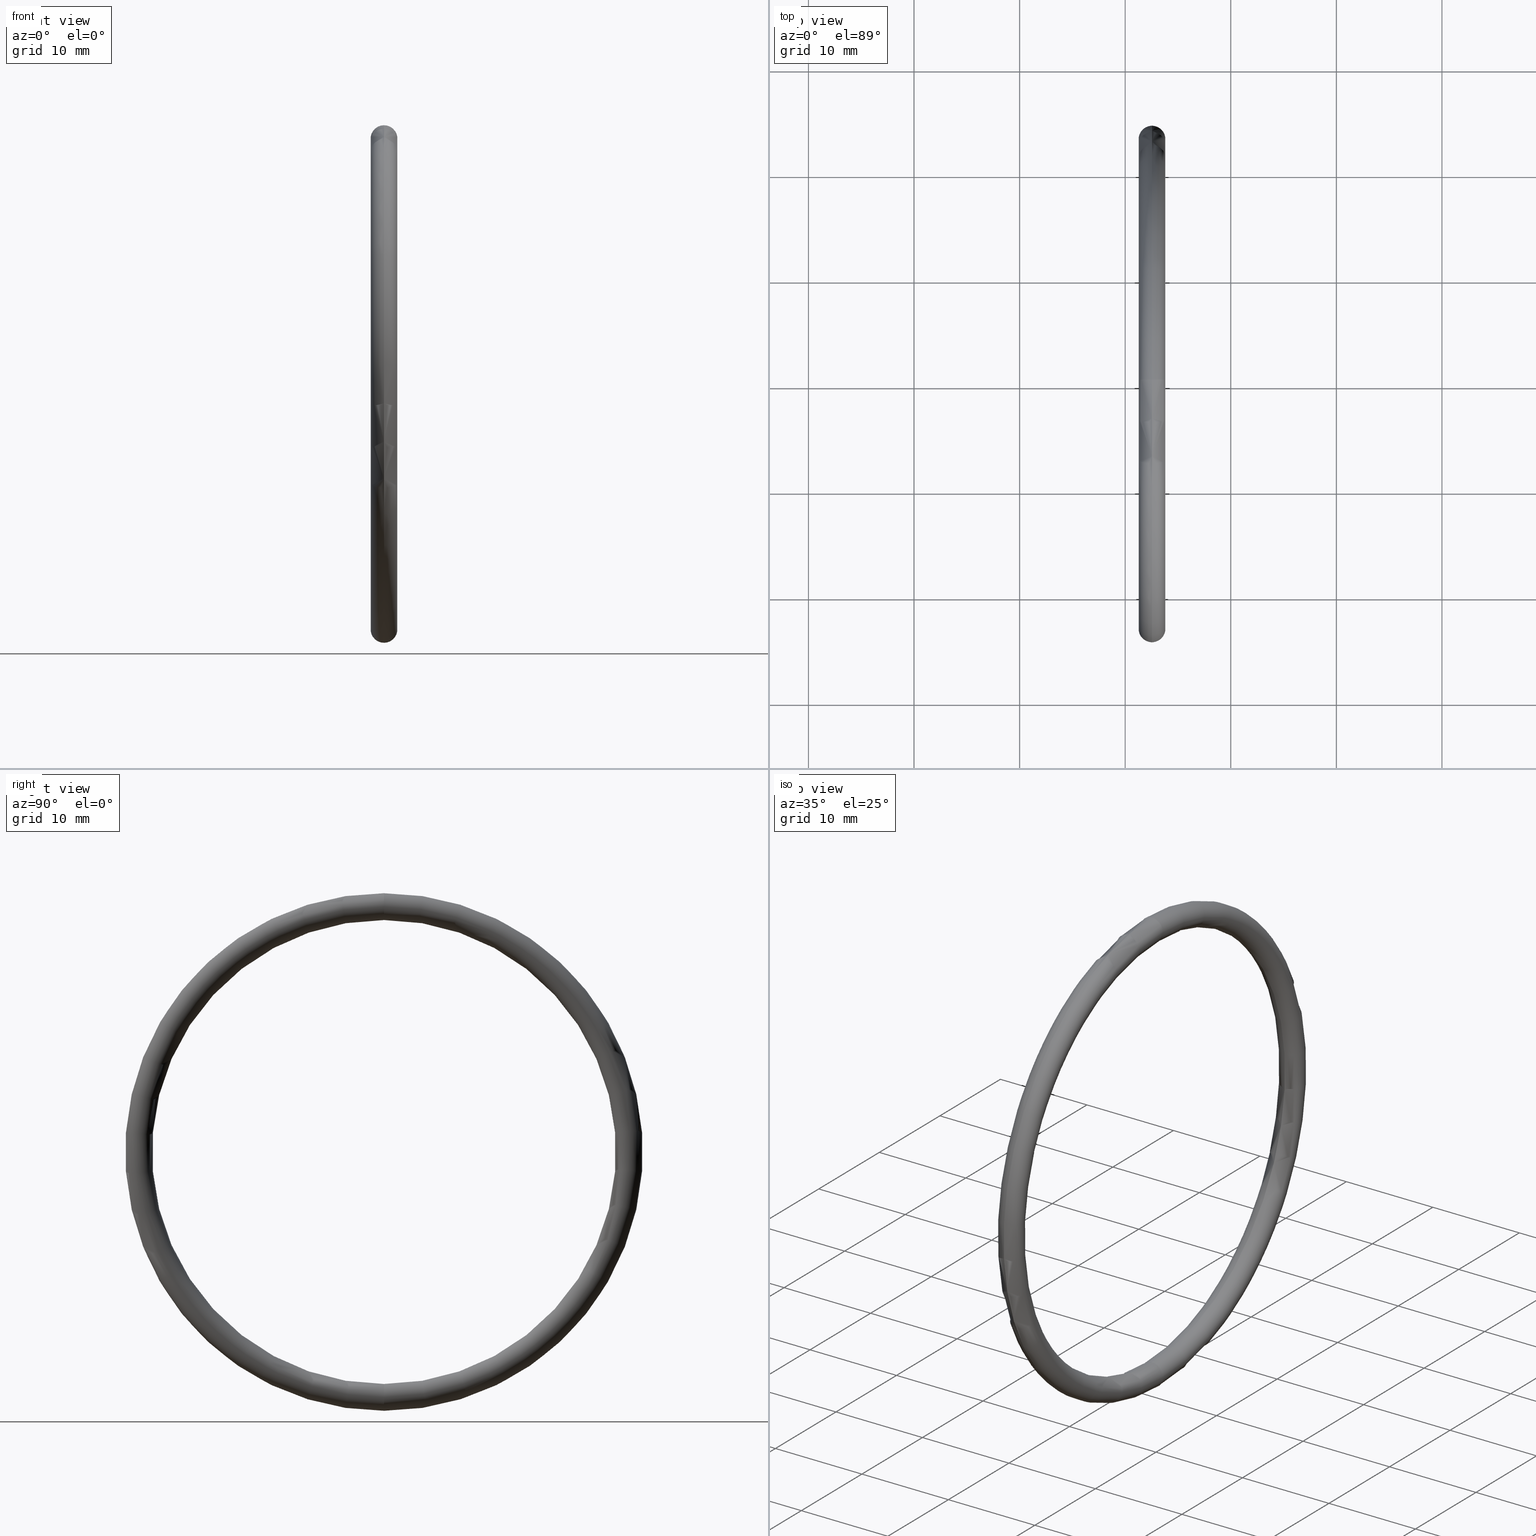
[diagram: canonical four-view strip — front | top / right | iso, engineering-drawing reading convention]
A machine part, canonical four-view strip (front | top / right | iso — engineering-drawing reading convention). The complete STEP part file that produces these views, byte-faithful:
ISO-10303-21;
HEADER;
FILE_DESCRIPTION (( 'STEP AP203' ),
    '1' );
FILE_NAME ('OR-36-VT.STEP',
    '2008-06-24T10:31:21',
    ( 'BSI05' ),
    ( 'BAYSTATE' ),
    'SwSTEP 2.0',
    'SolidWorks 2007',
    '' );
FILE_SCHEMA (( 'CONFIG_CONTROL_DESIGN' ));
ENDSEC;

DATA;
#1 = TOROIDAL_SURFACE ( 'NONE', #20, 0.9149999999999999200, 0.05000000000000000300 ) ;
#2 = DIRECTION ( 'NONE',  ( 0.0000000000000000000, 0.0000000000000000000, 1.000000000000000000 ) ) ;
#3 = DIRECTION ( 'NONE',  ( -1.000000000000000000, 0.0000000000000000000, 0.0000000000000000000 ) ) ;
#4 = EDGE_LOOP ( 'NONE', ( #86, #87, #67, #8 ) ) ;
#5 = ADVANCED_FACE ( 'NONE', ( #32 ), #84, .T. ) ;
#6 = ORIENTED_EDGE ( 'NONE', *, *, #52, .T. ) ;
#7 =( LENGTH_UNIT ( ) NAMED_UNIT ( * ) SI_UNIT ( $, .METRE. ) );
#8 = ORIENTED_EDGE ( 'NONE', *, *, #88, .T. ) ;
#9 = DIRECTION ( 'NONE',  ( 0.0000000000000000000, 0.0000000000000000000, 1.000000000000000000 ) ) ;
#10 = DIRECTION ( 'NONE',  ( -1.000000000000000000, 0.0000000000000000000, 0.0000000000000000000 ) ) ;
#11 = CARTESIAN_POINT ( 'NONE',  ( 0.1000000000000001200, 0.0000000000000000000, 0.0000000000000000000 ) ) ;
#12 = ORIENTED_EDGE ( 'NONE', *, *, #70, .T. ) ;
#13 = EDGE_CURVE ( 'NONE', #21, #91, #97, .T. ) ;
#14 = ORIENTED_EDGE ( 'NONE', *, *, #119, .F. ) ;
#15 = ADVANCED_FACE ( 'NONE', ( #98 ), #1, .T. ) ;
#16 = VERTEX_POINT ( 'NONE', #57 ) ;
#17 = FACE_OUTER_BOUND ( 'NONE', #4, .T. ) ;
#18 = DIRECTION ( 'NONE',  ( 0.0000000000000000000, 0.0000000000000000000, 1.000000000000000000 ) ) ;
#19 = DIRECTION ( 'NONE',  ( -1.000000000000000000, 0.0000000000000000000, 0.0000000000000000000 ) ) ;
#20 = AXIS2_PLACEMENT_3D ( 'NONE', #56, #55, #54 ) ;
#21 = VERTEX_POINT ( 'NONE', #46 ) ;
#22 = CARTESIAN_POINT ( 'NONE',  ( 0.1000000000000001200, 0.0000000000000000000, 0.9149999999999999200 ) ) ;
#23 = AXIS2_PLACEMENT_3D ( 'NONE', #22, #30, #29 ) ;
#24 = CIRCLE ( 'NONE', #23, 0.05000000000000001000 ) ;
#25 = DIRECTION ( 'NONE',  ( 0.0000000000000000000, 0.0000000000000000000, 1.000000000000000000 ) ) ;
#26 = CIRCLE ( 'NONE', #115, 0.8649999999999998800 ) ;
#27 = CARTESIAN_POINT ( 'NONE',  ( 0.1000000000000001200, 0.0000000000000000000, 0.0000000000000000000 ) ) ;
#28 = CARTESIAN_POINT ( 'NONE',  ( 0.1000000000000001200, 1.181784161177195800E-016, -0.9649999999999999700 ) ) ;
#29 = DIRECTION ( 'NONE',  ( 0.0000000000000000000, 0.0000000000000000000, -1.000000000000000000 ) ) ;
#30 = DIRECTION ( 'NONE',  ( 0.0000000000000000000, -1.000000000000000000, 0.0000000000000000000 ) ) ;
#31 = AXIS2_PLACEMENT_3D ( 'NONE', #11, #10, #9 ) ;
#32 = FACE_OUTER_BOUND ( 'NONE', #62, .T. ) ;
#33 = CARTESIAN_POINT ( 'NONE',  ( 0.0000000000000000000, 0.0000000000000000000, 0.0000000000000000000 ) ) ;
#34 = ADVANCED_BREP_SHAPE_REPRESENTATION ( 'OR-36-VT', ( #53, #81 ), #58 ) ;
#35 = CARTESIAN_POINT ( 'NONE',  ( 0.1000000000000001200, 0.0000000000000000000, 0.0000000000000000000 ) ) ;
#36 = DIRECTION ( 'NONE',  ( 0.0000000000000000000, 0.0000000000000000000, -1.000000000000000000 ) ) ;
#37 = DIRECTION ( 'NONE',  ( 0.0000000000000000000, -1.000000000000000000, 0.0000000000000000000 ) ) ;
#38 = AXIS2_PLACEMENT_3D ( 'NONE', #94, #37, #36 ) ;
#39 = CIRCLE ( 'NONE', #38, 0.05000000000000001000 ) ;
#40 = EDGE_CURVE ( 'NONE', #91, #21, #93, .T. ) ;
#41 = DIRECTION ( 'NONE',  ( 0.0000000000000000000, 0.0000000000000000000, 1.000000000000000000 ) ) ;
#42 = DIRECTION ( 'NONE',  ( -1.000000000000000000, 0.0000000000000000000, 0.0000000000000000000 ) ) ;
#43 = AXIS2_PLACEMENT_3D ( 'NONE', #35, #42, #41 ) ;
#44 = TOROIDAL_SURFACE ( 'NONE', #43, 0.9149999999999999200, 0.05000000000000000300 ) ;
#45 = CARTESIAN_POINT ( 'NONE',  ( 0.1000000000000001200, 0.0000000000000000000, 0.0000000000000000000 ) ) ;
#46 = CARTESIAN_POINT ( 'NONE',  ( 0.1000000000000001200, 0.0000000000000000000, 0.9649999999999999700 ) ) ;
#47 = LENGTH_MEASURE_WITH_UNIT ( LENGTH_MEASURE( 0.02539999999999999900 ), #7 );
#48 = DIMENSIONAL_EXPONENTS ( 1.000000000000000000, 0.0000000000000000000, 0.0000000000000000000, 0.0000000000000000000, 0.0000000000000000000, 0.0000000000000000000, 0.0000000000000000000 ) ;
#49 = DIRECTION ( 'NONE',  ( 0.0000000000000000000, 0.0000000000000000000, 1.000000000000000000 ) ) ;
#50 = DIRECTION ( 'NONE',  ( -1.000000000000000000, 0.0000000000000000000, 0.0000000000000000000 ) ) ;
#51 = AXIS2_PLACEMENT_3D ( 'NONE', #27, #50, #49 ) ;
#52 = EDGE_CURVE ( 'NONE', #21, #16, #39, .T. ) ;
#53 = MANIFOLD_SOLID_BREP ( 'NONE', #66 ) ;
#54 = DIRECTION ( 'NONE',  ( 0.0000000000000000000, 0.0000000000000000000, 1.000000000000000000 ) ) ;
#55 = DIRECTION ( 'NONE',  ( -1.000000000000000000, 0.0000000000000000000, 0.0000000000000000000 ) ) ;
#56 = CARTESIAN_POINT ( 'NONE',  ( 0.1000000000000001200, 0.0000000000000000000, 0.0000000000000000000 ) ) ;
#57 = CARTESIAN_POINT ( 'NONE',  ( 0.1000000000000001200, 0.0000000000000000000, 0.8649999999999998800 ) ) ;
#58 =( GEOMETRIC_REPRESENTATION_CONTEXT ( 3 ) GLOBAL_UNCERTAINTY_ASSIGNED_CONTEXT ( ( #59 ) ) GLOBAL_UNIT_ASSIGNED_CONTEXT ( ( #90, #89, #60 ) ) REPRESENTATION_CONTEXT ( 'NONE', 'WORKASPACE' ) );
#59 = UNCERTAINTY_MEASURE_WITH_UNIT (LENGTH_MEASURE( 1.000000000000000100E-005 ), #90, 'distance_accuracy_value', 'NONE');
#60 =( NAMED_UNIT ( * ) SI_UNIT ( $, .STERADIAN. ) SOLID_ANGLE_UNIT ( ) );
#61 = ADVANCED_FACE ( 'NONE', ( #17 ), #44, .T. ) ;
#62 = EDGE_LOOP ( 'NONE', ( #63, #83, #68, #64 ) ) ;
#63 = ORIENTED_EDGE ( 'NONE', *, *, #13, .F. ) ;
#64 = ORIENTED_EDGE ( 'NONE', *, *, #65, .T. ) ;
#65 = EDGE_CURVE ( 'NONE', #78, #91, #109, .T. ) ;
#66 = CLOSED_SHELL ( 'NONE', ( #71, #15, #5, #61 ) ) ;
#67 = ORIENTED_EDGE ( 'NONE', *, *, #104, .T. ) ;
#68 = ORIENTED_EDGE ( 'NONE', *, *, #119, .T. ) ;
#69 = ORIENTED_EDGE ( 'NONE', *, *, #40, .T. ) ;
#70 = EDGE_CURVE ( 'NONE', #91, #78, #75, .T. ) ;
#71 = ADVANCED_FACE ( 'NONE', ( #76 ), #101, .T. ) ;
#72 = DIRECTION ( 'NONE',  ( 0.0000000000000000000, -1.224646799147351700E-016, 1.000000000000000000 ) ) ;
#73 = DIRECTION ( 'NONE',  ( 0.0000000000000000000, 1.000000000000000000, 1.224646799147353200E-016 ) ) ;
#74 = AXIS2_PLACEMENT_3D ( 'NONE', #110, #73, #72 ) ;
#75 = CIRCLE ( 'NONE', #74, 0.05000000000000001000 ) ;
#76 = FACE_OUTER_BOUND ( 'NONE', #85, .T. ) ;
#77 = EDGE_LOOP ( 'NONE', ( #116, #117, #12, #14 ) ) ;
#78 = VERTEX_POINT ( 'NONE', #102 ) ;
#79 = DIRECTION ( 'NONE',  ( 1.000000000000000000, 0.0000000000000000000, 0.0000000000000000000 ) ) ;
#80 = DIRECTION ( 'NONE',  ( 0.0000000000000000000, 0.0000000000000000000, 1.000000000000000000 ) ) ;
#81 = AXIS2_PLACEMENT_3D ( 'NONE', #33, #80, #79 ) ;
#82 = ORIENTED_EDGE ( 'NONE', *, *, #104, .F. ) ;
#83 = ORIENTED_EDGE ( 'NONE', *, *, #88, .F. ) ;
#84 = TOROIDAL_SURFACE ( 'NONE', #31, 0.9149999999999999200, 0.05000000000000000300 ) ;
#85 = EDGE_LOOP ( 'NONE', ( #118, #69, #6, #82 ) ) ;
#86 = ORIENTED_EDGE ( 'NONE', *, *, #40, .F. ) ;
#87 = ORIENTED_EDGE ( 'NONE', *, *, #65, .F. ) ;
#88 = EDGE_CURVE ( 'NONE', #16, #21, #24, .T. ) ;
#89 =( NAMED_UNIT ( * ) PLANE_ANGLE_UNIT ( ) SI_UNIT ( $, .RADIAN. ) );
#90 =( CONVERSION_BASED_UNIT ( 'INCH', #47 ) LENGTH_UNIT ( ) NAMED_UNIT ( #48 ) );
#91 = VERTEX_POINT ( 'NONE', #28 ) ;
#92 = AXIS2_PLACEMENT_3D ( 'NONE', #45, #19, #18 ) ;
#93 = CIRCLE ( 'NONE', #92, 0.9649999999999999700 ) ;
#94 = CARTESIAN_POINT ( 'NONE',  ( 0.1000000000000001200, 0.0000000000000000000, 0.9149999999999999200 ) ) ;
#95 = CARTESIAN_POINT ( 'NONE',  ( 0.1000000000000001200, 0.0000000000000000000, 0.0000000000000000000 ) ) ;
#96 = AXIS2_PLACEMENT_3D ( 'NONE', #95, #3, #2 ) ;
#97 = CIRCLE ( 'NONE', #96, 0.9649999999999999700 ) ;
#98 = FACE_OUTER_BOUND ( 'NONE', #77, .T. ) ;
#99 = DIRECTION ( 'NONE',  ( -1.000000000000000000, 0.0000000000000000000, 0.0000000000000000000 ) ) ;
#100 = AXIS2_PLACEMENT_3D ( 'NONE', #103, #99, #25 ) ;
#101 = TOROIDAL_SURFACE ( 'NONE', #100, 0.9149999999999999200, 0.05000000000000000300 ) ;
#102 = CARTESIAN_POINT ( 'NONE',  ( 0.1000000000000001200, 1.059319481262460500E-016, -0.8649999999999998800 ) ) ;
#103 = CARTESIAN_POINT ( 'NONE',  ( 0.1000000000000001200, 0.0000000000000000000, 0.0000000000000000000 ) ) ;
#104 = EDGE_CURVE ( 'NONE', #78, #16, #26, .T. ) ;
#105 = DIRECTION ( 'NONE',  ( 0.0000000000000000000, -1.224646799147351700E-016, 1.000000000000000000 ) ) ;
#106 = DIRECTION ( 'NONE',  ( 0.0000000000000000000, 1.000000000000000000, 1.224646799147353200E-016 ) ) ;
#107 = CARTESIAN_POINT ( 'NONE',  ( 0.1000000000000001200, 1.120551821219828000E-016, -0.9149999999999999200 ) ) ;
#108 = AXIS2_PLACEMENT_3D ( 'NONE', #107, #106, #105 ) ;
#109 = CIRCLE ( 'NONE', #108, 0.05000000000000001000 ) ;
#110 = CARTESIAN_POINT ( 'NONE',  ( 0.1000000000000001200, 1.120551821219828000E-016, -0.9149999999999999200 ) ) ;
#111 = CIRCLE ( 'NONE', #51, 0.8649999999999998800 ) ;
#112 = DIRECTION ( 'NONE',  ( 0.0000000000000000000, 0.0000000000000000000, 1.000000000000000000 ) ) ;
#113 = DIRECTION ( 'NONE',  ( -1.000000000000000000, 0.0000000000000000000, 0.0000000000000000000 ) ) ;
#114 = CARTESIAN_POINT ( 'NONE',  ( 0.1000000000000001200, 0.0000000000000000000, 0.0000000000000000000 ) ) ;
#115 = AXIS2_PLACEMENT_3D ( 'NONE', #114, #113, #112 ) ;
#116 = ORIENTED_EDGE ( 'NONE', *, *, #52, .F. ) ;
#117 = ORIENTED_EDGE ( 'NONE', *, *, #13, .T. ) ;
#118 = ORIENTED_EDGE ( 'NONE', *, *, #70, .F. ) ;
#119 = EDGE_CURVE ( 'NONE', #16, #78, #111, .T. ) ;
#120 = APPROVAL_DATE_TIME ( #121, #144 ) ;
#121 = DATE_AND_TIME ( #122, #123 ) ;
#122 = CALENDAR_DATE ( 2008, 24, 6 ) ;
#123 = LOCAL_TIME ( 16, 1, 21.00000000000000000, #124 ) ;
#124 = COORDINATED_UNIVERSAL_TIME_OFFSET ( 5, 30, .AHEAD. ) ;
#125 = CC_DESIGN_APPROVAL ( #169, ( #186 ) ) ;
#126 = APPROVAL_DATE_TIME ( #127, #169 ) ;
#127 = DATE_AND_TIME ( #128, #165 ) ;
#128 = CALENDAR_DATE ( 2008, 24, 6 ) ;
#129 = PRODUCT ( 'OR-36-VT', 'OR-36-VT', '', ( #149 ) ) ;
#130 = SHAPE_DEFINITION_REPRESENTATION ( #164, #34 ) ;
#131 = PERSON_AND_ORGANIZATION ( #153, #188 ) ;
#132 = CC_DESIGN_APPROVAL ( #144, ( #146 ) ) ;
#133 = APPROVAL ( #134, 'UNSPECIFIED' ) ;
#134 = APPROVAL_STATUS ( 'not_yet_approved' ) ;
#135 = PERSON_AND_ORGANIZATION ( #153, #188 ) ;
#136 = CC_DESIGN_DATE_AND_TIME_ASSIGNMENT ( #138, #137, ( #162 ) ) ;
#137 = DATE_TIME_ROLE ( 'classification_date' ) ;
#138 = DATE_AND_TIME ( #139, #140 ) ;
#139 = CALENDAR_DATE ( 2008, 24, 6 ) ;
#140 = LOCAL_TIME ( 16, 1, 21.00000000000000000, #141 ) ;
#141 = COORDINATED_UNIVERSAL_TIME_OFFSET ( 5, 30, .AHEAD. ) ;
#142 = APPROVAL_PERSON_ORGANIZATION ( #147, #144, #143 ) ;
#143 = APPROVAL_ROLE ( '' ) ;
#144 = APPROVAL ( #145, 'UNSPECIFIED' ) ;
#145 = APPROVAL_STATUS ( 'not_yet_approved' ) ;
#146 = PRODUCT_DEFINITION ( 'UNKNOWN', '', #186, #148 ) ;
#147 = PERSON_AND_ORGANIZATION ( #153, #188 ) ;
#148 = DESIGN_CONTEXT ( 'detailed design', #172, 'design' ) ;
#149 = MECHANICAL_CONTEXT ( 'NONE', #151, 'mechanical' ) ;
#150 = APPLICATION_PROTOCOL_DEFINITION ( 'international standard', 'config_control_design', 1994, #151 ) ;
#151 = APPLICATION_CONTEXT ( 'configuration controlled 3d designs of mechanical parts and assemblies' ) ;
#152 = PERSON_AND_ORGANIZATION ( #153, #188 ) ;
#153 = PERSON ( 'UNSPECIFIED', 'UNSPECIFIED', 'UNSPECIFIED', ('UNSPECIFIED'), ('UNSPECIFIED'), ('UNSPECIFIED') ) ;
#154 = DATE_TIME_ROLE ( 'creation_date' ) ;
#155 = DATE_AND_TIME ( #156, #157 ) ;
#156 = CALENDAR_DATE ( 2008, 24, 6 ) ;
#157 = LOCAL_TIME ( 16, 1, 21.00000000000000000, #158 ) ;
#158 = COORDINATED_UNIVERSAL_TIME_OFFSET ( 5, 30, .AHEAD. ) ;
#159 = CC_DESIGN_PERSON_AND_ORGANIZATION_ASSIGNMENT ( #161, #160, ( #162 ) ) ;
#160 = PERSON_AND_ORGANIZATION_ROLE ( 'classification_officer' ) ;
#161 = PERSON_AND_ORGANIZATION ( #153, #188 ) ;
#162 = SECURITY_CLASSIFICATION ( '', '', #163 ) ;
#163 = SECURITY_CLASSIFICATION_LEVEL ( 'unclassified' ) ;
#164 = PRODUCT_DEFINITION_SHAPE ( 'NONE', 'NONE',  #146 ) ;
#165 = LOCAL_TIME ( 16, 1, 21.00000000000000000, #166 ) ;
#166 = COORDINATED_UNIVERSAL_TIME_OFFSET ( 5, 30, .AHEAD. ) ;
#167 = APPROVAL_PERSON_ORGANIZATION ( #185, #169, #168 ) ;
#168 = APPROVAL_ROLE ( '' ) ;
#169 = APPROVAL ( #170, 'UNSPECIFIED' ) ;
#170 = APPROVAL_STATUS ( 'not_yet_approved' ) ;
#171 = APPLICATION_PROTOCOL_DEFINITION ( 'international standard', 'config_control_design', 1994, #172 ) ;
#172 = APPLICATION_CONTEXT ( 'configuration controlled 3d designs of mechanical parts and assemblies' ) ;
#173 = CC_DESIGN_PERSON_AND_ORGANIZATION_ASSIGNMENT ( #152, #174, ( #129 ) ) ;
#174 = PERSON_AND_ORGANIZATION_ROLE ( 'design_owner' ) ;
#175 = PRODUCT_RELATED_PRODUCT_CATEGORY ( 'detail', '', ( #129 ) ) ;
#176 = CC_DESIGN_SECURITY_CLASSIFICATION ( #162, ( #186 ) ) ;
#177 = CC_DESIGN_APPROVAL ( #133, ( #162 ) ) ;
#178 = APPROVAL_DATE_TIME ( #179, #133 ) ;
#179 = DATE_AND_TIME ( #180, #181 ) ;
#180 = CALENDAR_DATE ( 2008, 24, 6 ) ;
#181 = LOCAL_TIME ( 16, 1, 21.00000000000000000, #182 ) ;
#182 = COORDINATED_UNIVERSAL_TIME_OFFSET ( 5, 30, .AHEAD. ) ;
#183 = APPROVAL_PERSON_ORGANIZATION ( #135, #133, #184 ) ;
#184 = APPROVAL_ROLE ( '' ) ;
#185 = PERSON_AND_ORGANIZATION ( #153, #188 ) ;
#186 = PRODUCT_DEFINITION_FORMATION_WITH_SPECIFIED_SOURCE ( 'ANY', '', #129, .NOT_KNOWN. ) ;
#187 = CC_DESIGN_DATE_AND_TIME_ASSIGNMENT ( #155, #154, ( #146 ) ) ;
#188 = ORGANIZATION ( 'UNSPECIFIED', 'UNSPECIFIED', '' ) ;
#189 = CC_DESIGN_PERSON_AND_ORGANIZATION_ASSIGNMENT ( #191, #190, ( #186 ) ) ;
#190 = PERSON_AND_ORGANIZATION_ROLE ( 'design_supplier' ) ;
#191 = PERSON_AND_ORGANIZATION ( #153, #188 ) ;
#192 = CC_DESIGN_PERSON_AND_ORGANIZATION_ASSIGNMENT ( #194, #193, ( #186 ) ) ;
#193 = PERSON_AND_ORGANIZATION_ROLE ( 'creator' ) ;
#194 = PERSON_AND_ORGANIZATION ( #153, #188 ) ;
#195 = CC_DESIGN_PERSON_AND_ORGANIZATION_ASSIGNMENT ( #131, #196, ( #146 ) ) ;
#196 = PERSON_AND_ORGANIZATION_ROLE ( 'creator' ) ;
ENDSEC;
END-ISO-10303-21;
